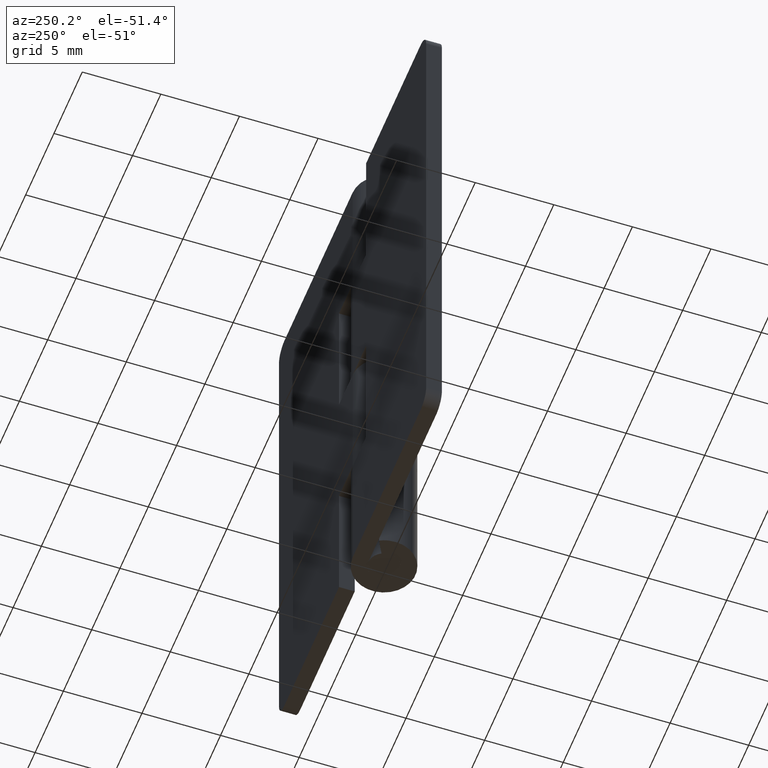
[diagram: clean part render]
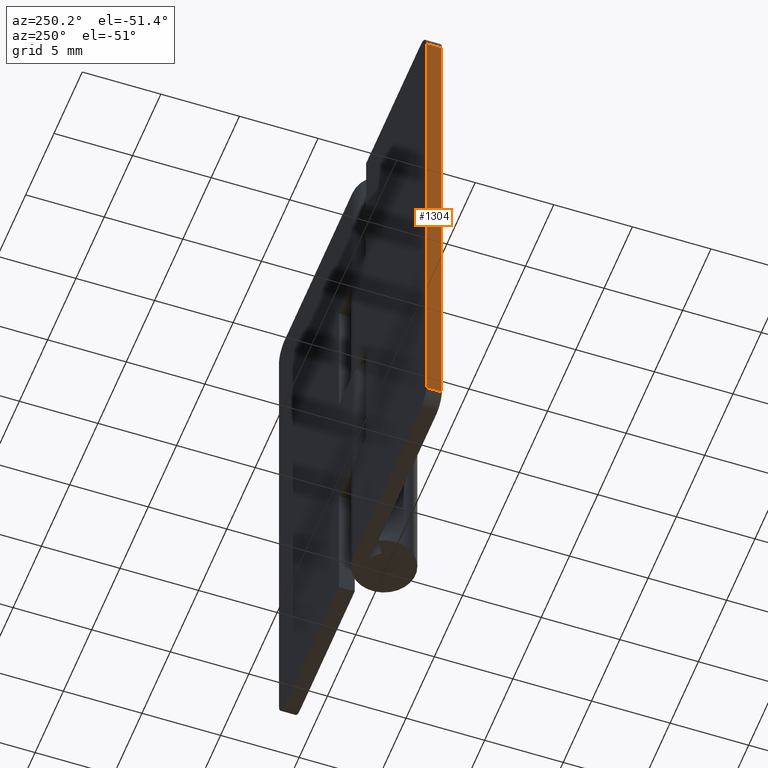
[diagram: same view with one face highlighted and labeled with its STEP entity id]
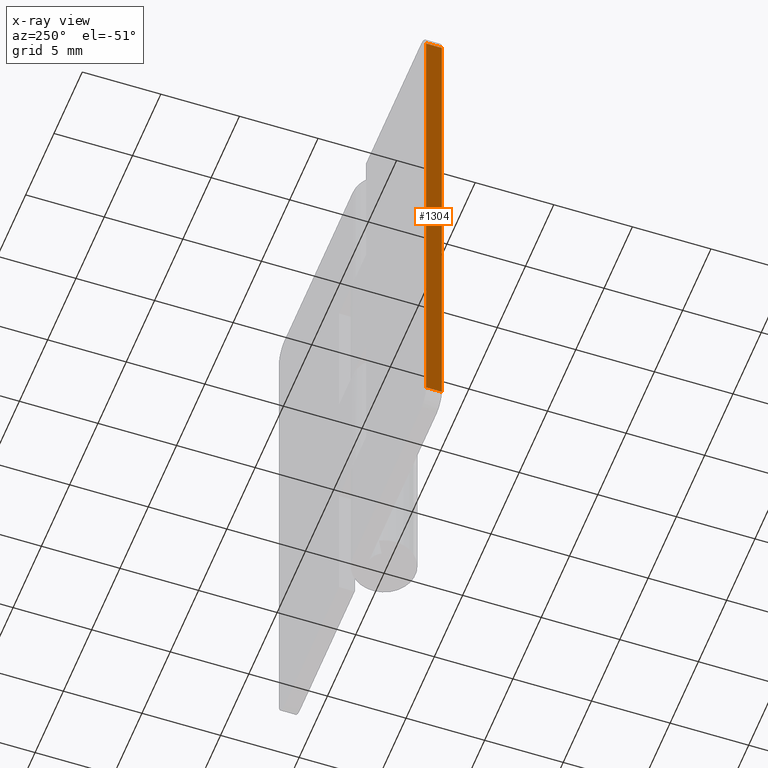
[diagram: x-ray of the same camera — body ghosted, the highlighted face saturated]
A machine part, auxiliary view. The second image highlights one B-rep face of the part: STEP entity #1304.
The next image is the same camera in x-ray: the body ghosted, the highlighted face saturated — about 0% of this face is hidden behind the body in this view.
In plain terms, the highlighted face is a freeform B-spline surface patch.
Its self-contained STEP definition (entity closure, byte-faithful):
#827=CARTESIAN_POINT('',(-13.0,1.0,34.0));
#828=VERTEX_POINT('',#827);
#849=CARTESIAN_POINT('',(-13.0,2.0,34.0));
#850=VERTEX_POINT('',#849);
#864=CARTESIAN_POINT('',(-13.0,1.0,34.0));
#865=CARTESIAN_POINT('',(-13.0,2.0,34.0));
#866=QUASI_UNIFORM_CURVE('',1,(#864,#865),.UNSPECIFIED.,.F.,.U.);
#867=EDGE_CURVE('',#828,#850,#866,.T.);
#886=CARTESIAN_POINT('',(-13.0,1.0,1.0));
#887=VERTEX_POINT('',#886);
#903=CARTESIAN_POINT('',(-13.0,2.0,1.0));
#904=VERTEX_POINT('',#903);
#905=CARTESIAN_POINT('',(-13.0,2.0,1.0));
#906=CARTESIAN_POINT('',(-13.0,1.0,1.0));
#907=QUASI_UNIFORM_CURVE('',1,(#905,#906),.UNSPECIFIED.,.F.,.U.);
#908=EDGE_CURVE('',#904,#887,#907,.T.);
#1285=CARTESIAN_POINT('',(-13.0,0.950050001938194,-0.648349936039598));
#1286=CARTESIAN_POINT('',(-13.0,0.950050001938194,35.648350821168570));
#1287=CARTESIAN_POINT('',(-13.0,2.049950024883896,-0.648349936039598));
#1288=CARTESIAN_POINT('',(-13.0,2.049950024883896,35.648350821168570));
#1289=B_SPLINE_SURFACE_WITH_KNOTS('',1,1,((#1285,#1287),(#1286,#1288)),.UNSPECIFIED.,.F.,.F.,.U.,(2,2),(2,2),(0.0,36.296700757208171),(0.041708334948495,0.958291687403247),.UNSPECIFIED.);
#1290=CARTESIAN_POINT('',(-13.0,2.0,34.0));
#1291=CARTESIAN_POINT('',(-13.0,2.0,1.0));
#1292=QUASI_UNIFORM_CURVE('',1,(#1290,#1291),.UNSPECIFIED.,.F.,.U.);
#1293=EDGE_CURVE('',#850,#904,#1292,.T.);
#1294=ORIENTED_EDGE('',*,*,#1293,.T.);
#1295=ORIENTED_EDGE('',*,*,#908,.T.);
#1296=CARTESIAN_POINT('',(-13.0,1.0,34.0));
#1297=CARTESIAN_POINT('',(-13.0,1.0,1.0));
#1298=QUASI_UNIFORM_CURVE('',1,(#1296,#1297),.UNSPECIFIED.,.F.,.U.);
#1299=EDGE_CURVE('',#828,#887,#1298,.T.);
#1300=ORIENTED_EDGE('',*,*,#1299,.F.);
#1301=ORIENTED_EDGE('',*,*,#867,.T.);
#1302=EDGE_LOOP('',(#1294,#1295,#1300,#1301));
#1303=FACE_OUTER_BOUND('',#1302,.T.);
#1304=ADVANCED_FACE('',(#1303),#1289,.T.);